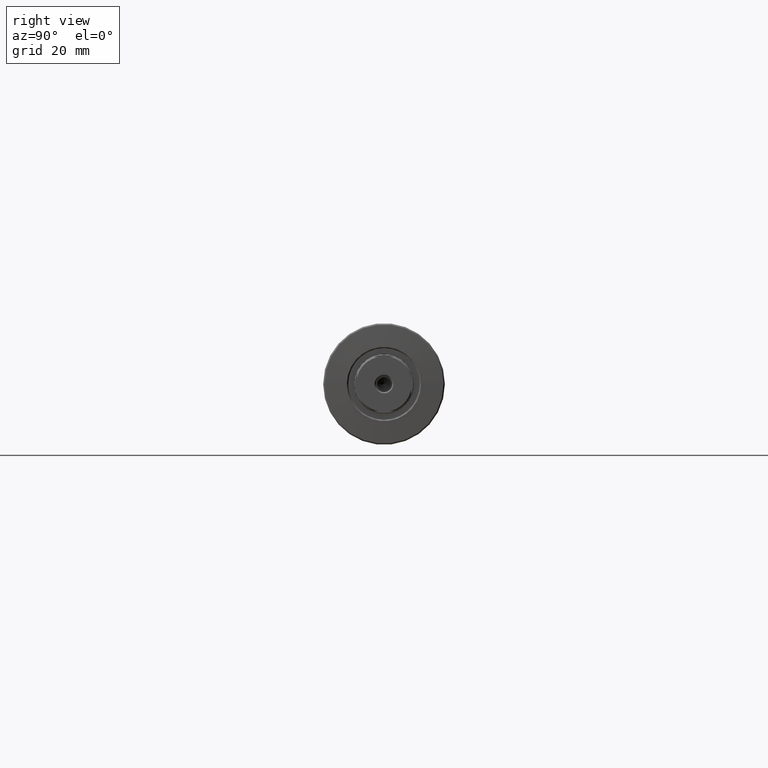
[diagram: clean part render]
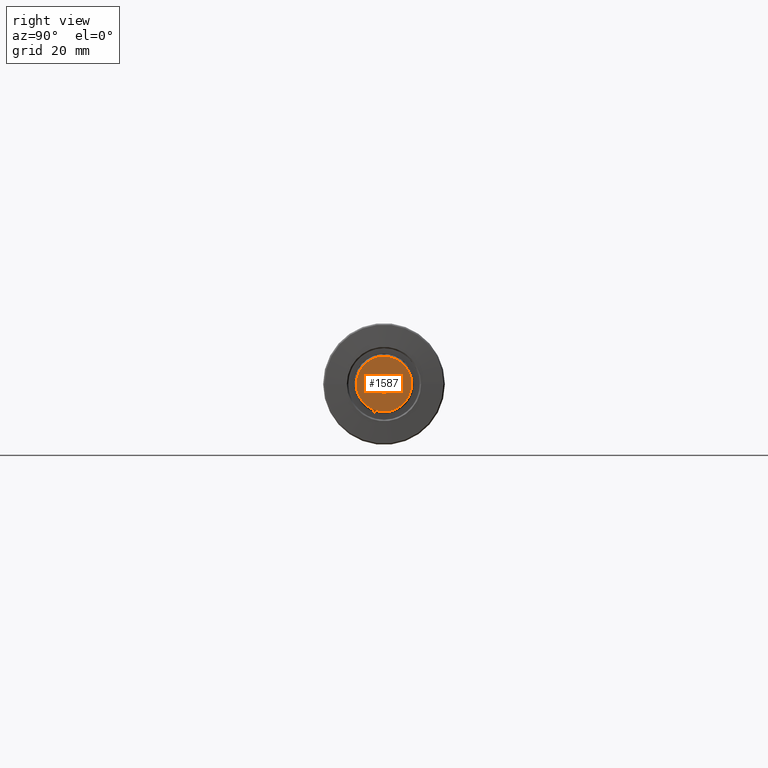
[diagram: same view with one face highlighted and labeled with its STEP entity id]
A machine part, right view. The second image highlights one B-rep face of the part: STEP entity #1587.
In plain terms, the highlighted planar face has unit normal (-1, -0, 0).
Its self-contained STEP definition (entity closure, byte-faithful):
#44 = CIRCLE ( 'NONE', #944, 3.500000000001096900 ) ;
#62 = VERTEX_POINT ( 'NONE', #170 ) ;
#121 = CARTESIAN_POINT ( 'NONE',  ( 263.0000000000000000, -6.148574185495778962E-34, 0.000000000000000000 ) ) ;
#125 = AXIS2_PLACEMENT_3D ( 'NONE', #194, #174, #946 ) ;
#148 = EDGE_CURVE ( 'NONE', #2127, #2009, #1293, .T. ) ;
#161 = AXIS2_PLACEMENT_3D ( 'NONE', #1956, #618, #1916 ) ;
#170 = CARTESIAN_POINT ( 'NONE',  ( 263.0000000000000000, 9.999999999995640820, 2.250000000019359625 ) ) ;
#174 = DIRECTION ( 'NONE',  ( 1.000000000000000000, 1.069542322069065801E-17, 0.000000000000000000 ) ) ;
#177 = EDGE_LOOP ( 'NONE', ( #1790, #471, #1184, #1091, #467, #1530, #1820, #306 ) ) ;
#194 = CARTESIAN_POINT ( 'NONE',  ( 263.0000000000000000, 2.812896307041643304E-15, 0.000000000000000000 ) ) ;
#221 = DIRECTION ( 'NONE',  ( 0.000000000000000000, -6.596018008076419881E-16, 1.000000000000000000 ) ) ;
#274 = DIRECTION ( 'NONE',  ( 0.000000000000000000, -1.000000000000000000, 0.000000000000000000 ) ) ;
#306 = ORIENTED_EDGE ( 'NONE', *, *, #1840, .T. ) ;
#344 = VERTEX_POINT ( 'NONE', #2303 ) ;
#394 = CIRCLE ( 'NONE', #161, 3.500000000001096900 ) ;
#402 = AXIS2_PLACEMENT_3D ( 'NONE', #121, #510, #1644 ) ;
#430 = EDGE_CURVE ( 'NONE', #657, #1353, #394, .T. ) ;
#438 = CIRCLE ( 'NONE', #835, 10.24999999999999289 ) ;
#456 = EDGE_CURVE ( 'NONE', #2277, #2009, #2142, .T. ) ;
#467 = ORIENTED_EDGE ( 'NONE', *, *, #1954, .F. ) ;
#469 = EDGE_LOOP ( 'NONE', ( #613, #663 ) ) ;
#470 = PLANE ( 'NONE',  #402 ) ;
#471 = ORIENTED_EDGE ( 'NONE', *, *, #744, .T. ) ;
#479 = FACE_OUTER_BOUND ( 'NONE', #177, .T. ) ;
#510 = DIRECTION ( 'NONE',  ( -1.000000000000000000, -1.069542322069065801E-17, 0.000000000000000000 ) ) ;
#530 = EDGE_CURVE ( 'NONE', #1043, #675, #900, .T. ) ;
#540 = EDGE_CURVE ( 'NONE', #1353, #657, #44, .T. ) ;
#611 = CARTESIAN_POINT ( 'NONE',  ( 262.9999999999998295, -10.00000000000435385, -3.944933459514880614 ) ) ;
#612 = EDGE_CURVE ( 'NONE', #62, #344, #1876, .T. ) ;
#613 = ORIENTED_EDGE ( 'NONE', *, *, #430, .T. ) ;
#618 = DIRECTION ( 'NONE',  ( -1.000000000000000000, -1.069542322069065801E-17, -0.000000000000000000 ) ) ;
#624 = CARTESIAN_POINT ( 'NONE',  ( 263.0000000000000000, 2.812896307041643304E-15, 0.000000000000000000 ) ) ;
#657 = VERTEX_POINT ( 'NONE', #2436 ) ;
#663 = ORIENTED_EDGE ( 'NONE', *, *, #540, .T. ) ;
#675 = VERTEX_POINT ( 'NONE', #2243 ) ;
#676 = VECTOR ( 'NONE', #1333, 1000.000000000000000 ) ;
#719 = EDGE_CURVE ( 'NONE', #62, #823, #1715, .T. ) ;
#744 = EDGE_CURVE ( 'NONE', #1043, #344, #438, .T. ) ;
#810 = CARTESIAN_POINT ( 'NONE',  ( 263.0000000000000568, 2.249999999999984901, -9.999999999999996447 ) ) ;
#823 = VERTEX_POINT ( 'NONE', #2173 ) ;
#829 = DIRECTION ( 'NONE',  ( 1.000000000000000000, 1.069542322069065801E-17, 0.000000000000000000 ) ) ;
#835 = AXIS2_PLACEMENT_3D ( 'NONE', #624, #829, #1593 ) ;
#878 = DIRECTION ( 'NONE',  ( 0.000000000000000000, -1.000000000000000000, 2.664535259100375697E-15 ) ) ;
#891 = CARTESIAN_POINT ( 'NONE',  ( 263.0000000000000000, -4.358606422664567117E-12, 0.000000000000000000 ) ) ;
#900 = LINE ( 'NONE', #1652, #1799 ) ;
#907 = CARTESIAN_POINT ( 'NONE',  ( 263.0000000000000000, -3.500000000005577316, 4.286263797017229021E-16 ) ) ;
#944 = AXIS2_PLACEMENT_3D ( 'NONE', #891, #1660, #2211 ) ;
#946 = DIRECTION ( 'NONE',  ( 0.000000000000000000, -1.000000000000000000, 0.000000000000000000 ) ) ;
#1043 = VERTEX_POINT ( 'NONE', #810 ) ;
#1065 = DIRECTION ( 'NONE',  ( 1.000000000000000000, 1.069542322069065801E-17, 0.000000000000000000 ) ) ;
#1077 = DIRECTION ( 'NONE',  ( -1.407150508389636294E-14, -1.000000000000000000, -4.397345338717613418E-16 ) ) ;
#1091 = ORIENTED_EDGE ( 'NONE', *, *, #719, .T. ) ;
#1184 = ORIENTED_EDGE ( 'NONE', *, *, #612, .F. ) ;
#1220 = DIRECTION ( 'NONE',  ( 1.000000000000000000, 1.069542322069065801E-17, 0.000000000000000000 ) ) ;
#1230 = LINE ( 'NONE', #2186, #1683 ) ;
#1293 = LINE ( 'NONE', #611, #2060 ) ;
#1333 = DIRECTION ( 'NONE',  ( 0.000000000000000000, 2.198672669358806709E-16, -1.000000000000000000 ) ) ;
#1353 = VERTEX_POINT ( 'NONE', #907 ) ;
#1420 = FACE_BOUND ( 'NONE', #469, .T. ) ;
#1530 = ORIENTED_EDGE ( 'NONE', *, *, #456, .T. ) ;
#1587 = ADVANCED_FACE ( 'NONE', ( #1420, #479 ), #470, .F. ) ;
#1593 = DIRECTION ( 'NONE',  ( 0.000000000000000000, -1.000000000000000000, 0.000000000000000000 ) ) ;
#1606 = CARTESIAN_POINT ( 'NONE',  ( 263.0000000000000000, 2.812896307041643304E-15, 0.000000000000000000 ) ) ;
#1644 = DIRECTION ( 'NONE',  ( 1.069542322069065801E-17, -1.000000000000000000, 0.000000000000000000 ) ) ;
#1652 = CARTESIAN_POINT ( 'NONE',  ( 263.0000000000000568, 3.944933459510520102, -9.999999999999996447 ) ) ;
#1660 = DIRECTION ( 'NONE',  ( -1.000000000000000000, -1.069542322069065801E-17, -0.000000000000000000 ) ) ;
#1667 = CARTESIAN_POINT ( 'NONE',  ( 262.9999999999998295, -10.00000000000435740, 2.249999999980406784 ) ) ;
#1683 = VECTOR ( 'NONE', #2201, 1000.000000000000000 ) ;
#1715 = CIRCLE ( 'NONE', #125, 10.24999999999999289 ) ;
#1790 = ORIENTED_EDGE ( 'NONE', *, *, #530, .F. ) ;
#1799 = VECTOR ( 'NONE', #1077, 1000.000000000000000 ) ;
#1820 = ORIENTED_EDGE ( 'NONE', *, *, #148, .F. ) ;
#1840 = EDGE_CURVE ( 'NONE', #2127, #675, #1955, .T. ) ;
#1876 = LINE ( 'NONE', #2093, #676 ) ;
#1895 = CARTESIAN_POINT ( 'NONE',  ( 263.0000000000000000, -10.00000000000435385, -2.249999999980507592 ) ) ;
#1910 = AXIS2_PLACEMENT_3D ( 'NONE', #1606, #1220, #274 ) ;
#1916 = DIRECTION ( 'NONE',  ( 0.000000000000000000, -1.000000000000000000, 0.000000000000000000 ) ) ;
#1954 = EDGE_CURVE ( 'NONE', #2277, #823, #1230, .T. ) ;
#1955 = CIRCLE ( 'NONE', #1910, 10.24999999999997335 ) ;
#1956 = CARTESIAN_POINT ( 'NONE',  ( 263.0000000000000000, -4.358606422664567117E-12, 0.000000000000000000 ) ) ;
#1974 = CARTESIAN_POINT ( 'NONE',  ( 262.9999999999999432, -2.249999999999787281, 10.00000000000000000 ) ) ;
#2009 = VERTEX_POINT ( 'NONE', #1667 ) ;
#2028 = AXIS2_PLACEMENT_3D ( 'NONE', #2401, #1065, #878 ) ;
#2060 = VECTOR ( 'NONE', #221, 1000.000000000000000 ) ;
#2093 = CARTESIAN_POINT ( 'NONE',  ( 263.0000000000001705, 9.999999999995640820, 3.944933459514878837 ) ) ;
#2127 = VERTEX_POINT ( 'NONE', #1895 ) ;
#2142 = CIRCLE ( 'NONE', #2028, 10.24999999999995381 ) ;
#2173 = CARTESIAN_POINT ( 'NONE',  ( 263.0000000000000568, 2.249999999999977796, 10.00000000000000000 ) ) ;
#2186 = CARTESIAN_POINT ( 'NONE',  ( 262.9999999999999432, -3.944933459519237129, 9.999999999999998224 ) ) ;
#2201 = DIRECTION ( 'NONE',  ( 1.407150508389636294E-14, 1.000000000000000000, 2.198672669358806709E-16 ) ) ;
#2211 = DIRECTION ( 'NONE',  ( 0.000000000000000000, -1.000000000000000000, 0.000000000000000000 ) ) ;
#2243 = CARTESIAN_POINT ( 'NONE',  ( 262.9999999999999432, -2.249999999999876987, -10.00000000000000000 ) ) ;
#2277 = VERTEX_POINT ( 'NONE', #1974 ) ;
#2303 = CARTESIAN_POINT ( 'NONE',  ( 263.0000000000001705, 9.999999999995642597, -2.250000000019354740 ) ) ;
#2401 = CARTESIAN_POINT ( 'NONE',  ( 263.0000000000000000, 2.812896307041643304E-15, 0.000000000000000000 ) ) ;
#2436 = CARTESIAN_POINT ( 'NONE',  ( 263.0000000000000000, 3.499999999996732392, 0.000000000000000000 ) ) ;